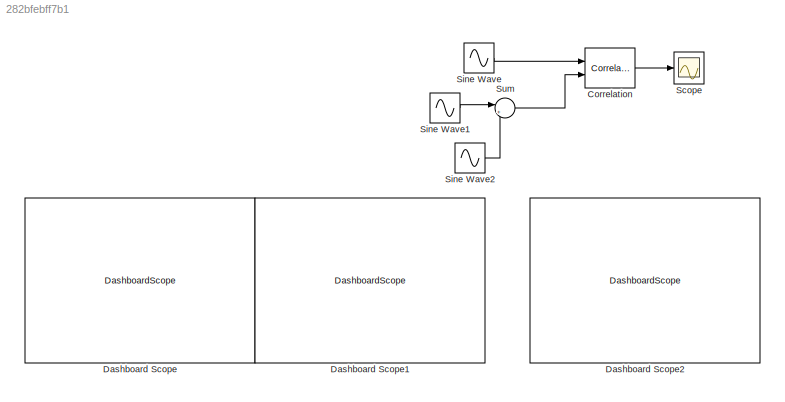
MODEL slx_282bfebff7b1
KIND model
CONFIG AbsTol = auto
CONFIG EnableMultiTasking = off
CONFIG FixedStep = auto
CONFIG MaxStep = auto
CONFIG MinStep = auto
CONFIG RelTol = 1e-3
CONFIG SampleTimeConstraint = Unconstrained
CONFIG Solver = VariableStepAuto
CONFIG SolverName = VariableStepAuto
CONFIG StartTime = 0.0
CONFIG StopTime = 0.1
BLOCK [Reference] Correlation  REF=dspstat3/Correlation
  Ports = [2, 1]
  SourceBlock = dspstat3/Correlation
  SourceProductBaseCode = DS
  SourceProductName = DSP System Toolbox
  SourceType = Correlation
BLOCK [DashboardScope] Dashboard Scope
  WebBlockId = 4
BLOCK [DashboardScope] Dashboard Scope1
  WebBlockId = 9
BLOCK [DashboardScope] Dashboard Scope2
  WebBlockId = 10
BLOCK [Scope] Scope
  Floating = off
  NumInputPorts = 1
  Ports = [1]
  ScopeSpecificationString = Simulink.scopes.TimeScopeBlockCfg('CurrentConfiguration', extmgr.ConfigurationSet(extmgr.Configuration('Core','General UI',true),extmgr.Configuration('Core','Source UI',true),extmgr.Configuration('Sources','WiredSimulink',true),extmgr.Configuration('Visuals','Time Domain',true),extmgr.Configuration('Tools','Plot Navigation',true),extmgr.Configuration('Tools','Measurements',true)),'Version','2018b'...<+1ch>
BLOCK [Sin] Sine Wave
  Frequency = 2*3.14*50
  Ports = [0, 1]
  SampleTime = 1/1000
BLOCK [Sin] Sine Wave1
  Frequency = 2*3.14*50
  Ports = [0, 1]
  SampleTime = 1/1000
BLOCK [Sin] Sine Wave2
  Amplitude = 0.23
  Frequency = 2*3.14*70
  Ports = [0, 1]
  SampleTime = 1/1000
BLOCK [Sum] Sum
  IconShape = round
  InputSameDT = off
  Inputs = |++
  OutDataTypeStr = Inherit: Inherit via internal rule
  Ports = [2, 1]
  SaturateOnIntegerOverflow = off
LINE Correlation:1 -> Scope:1
LINE Sine Wave1:1 -> Sum:1
LINE Sine Wave2:1 -> Sum:2
LINE Sine Wave:1 -> Correlation:1
LINE Sum:1 -> Correlation:2
